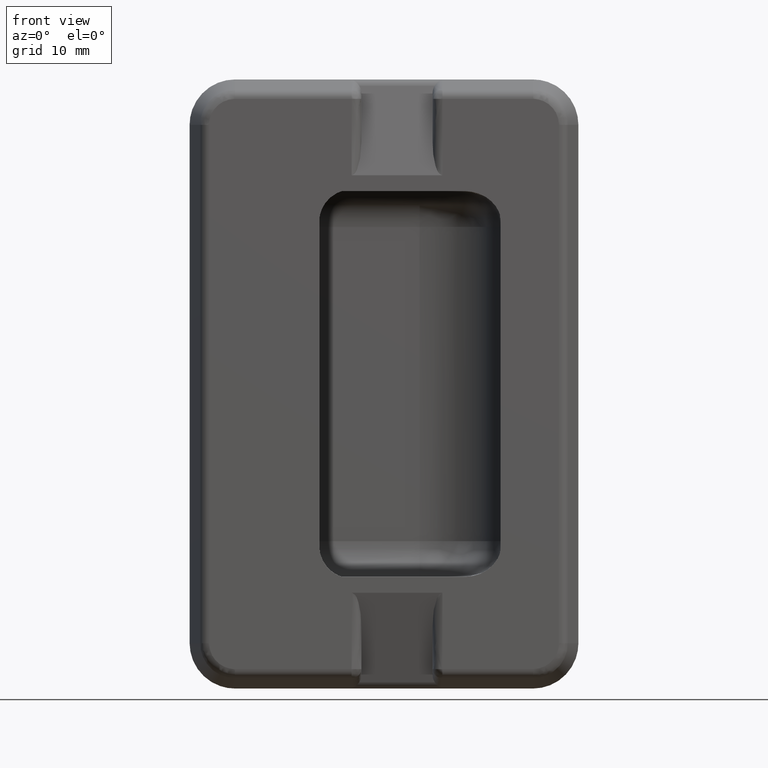
[diagram: clean part render]
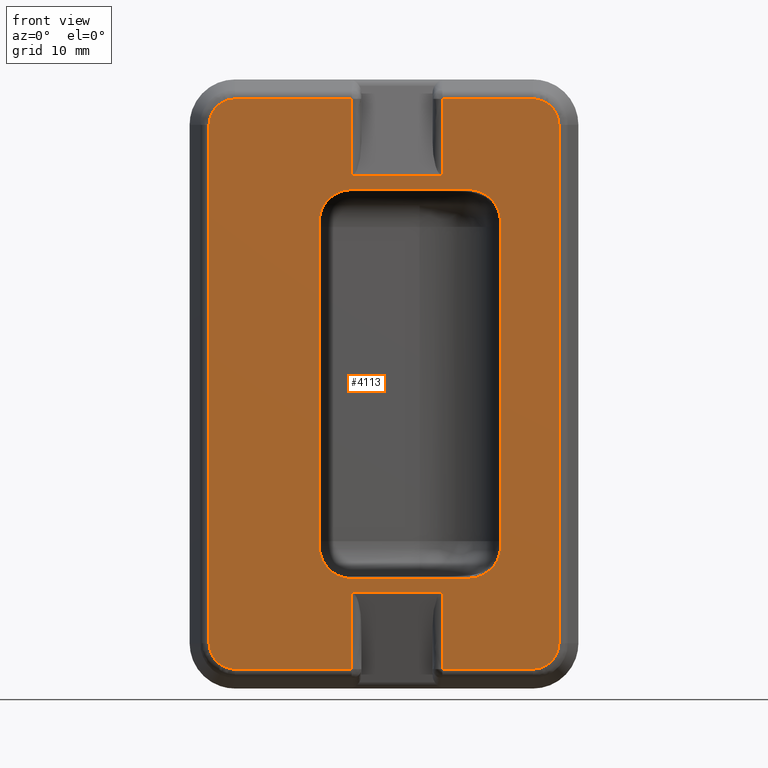
[diagram: same view with one face highlighted and labeled with its STEP entity id]
A machine part, front view. The second image highlights one B-rep face of the part: STEP entity #4113.
In plain terms, the highlighted face is a freeform B-spline surface patch.
Its self-contained STEP definition (entity closure, byte-faithful):
#1587=CARTESIAN_POINT('',(39.0,-5.500000000000000,-43.997117967007149));
#1588=VERTEX_POINT('',#1587);
#1695=CARTESIAN_POINT('',(39.0,-5.500000000000000,-32.215887141629537));
#1696=VERTEX_POINT('',#1695);
#1716=CARTESIAN_POINT('',(39.0,-5.500000000000000,-32.215887141629537));
#1717=CARTESIAN_POINT('',(39.0,-5.500000000000000,-43.997117967007149));
#1718=QUASI_UNIFORM_CURVE('',1,(#1716,#1717),.UNSPECIFIED.,.F.,.U.);
#1719=EDGE_CURVE('',#1696,#1588,#1718,.T.);
#1748=CARTESIAN_POINT('',(25.0,-5.500000000000000,-43.997117967007149));
#1749=VERTEX_POINT('',#1748);
#1794=CARTESIAN_POINT('',(25.0,-5.500000000000000,-32.215887141629537));
#1795=VERTEX_POINT('',#1794);
#1811=CARTESIAN_POINT('',(25.0,-5.500000000000000,-43.997117967007149));
#1812=CARTESIAN_POINT('',(25.0,-5.500000000000000,-32.215887141629537));
#1813=QUASI_UNIFORM_CURVE('',1,(#1811,#1812),.UNSPECIFIED.,.F.,.U.);
#1814=EDGE_CURVE('',#1749,#1795,#1813,.T.);
#1970=CARTESIAN_POINT('',(25.0,-5.500000000000000,43.997117967007199));
#1971=VERTEX_POINT('',#1970);
#2078=CARTESIAN_POINT('',(25.0,-5.500000000000000,32.215887141629537));
#2079=VERTEX_POINT('',#2078);
#2099=CARTESIAN_POINT('',(25.0,-5.500000000000000,32.215887141629537));
#2100=CARTESIAN_POINT('',(25.0,-5.500000000000000,43.997117967007199));
#2101=QUASI_UNIFORM_CURVE('',1,(#2099,#2100),.UNSPECIFIED.,.F.,.U.);
#2102=EDGE_CURVE('',#2079,#1971,#2101,.T.);
#2131=CARTESIAN_POINT('',(39.0,-5.500000000000000,43.997117967007199));
#2132=VERTEX_POINT('',#2131);
#2177=CARTESIAN_POINT('',(39.0,-5.500000000000000,32.215887141629537));
#2178=VERTEX_POINT('',#2177);
#2194=CARTESIAN_POINT('',(39.0,-5.500000000000000,43.997117967007199));
#2195=CARTESIAN_POINT('',(39.0,-5.500000000000000,32.215887141629537));
#2196=QUASI_UNIFORM_CURVE('',1,(#2194,#2195),.UNSPECIFIED.,.F.,.U.);
#2197=EDGE_CURVE('',#2132,#2178,#2196,.T.);
#2222=CARTESIAN_POINT('',(7.0,-5.500000000000000,43.997117967007100));
#2223=VERTEX_POINT('',#2222);
#2224=CARTESIAN_POINT('',(25.0,-5.500000000000000,43.997117967007199));
#2225=CARTESIAN_POINT('',(7.0,-5.500000000000000,43.997117967007100));
#2226=QUASI_UNIFORM_CURVE('',1,(#2224,#2225),.UNSPECIFIED.,.F.,.U.);
#2227=EDGE_CURVE('',#1971,#2223,#2226,.T.);
#2272=CARTESIAN_POINT('',(3.002882032992825,-5.500000000000000,40.0));
#2273=VERTEX_POINT('',#2272);
#2287=CARTESIAN_POINT('',(7.0,-5.500000000000000,43.997117967007163));
#2288=CARTESIAN_POINT('',(3.002882032992841,-5.500000000000000,43.997117967007149));
#2289=CARTESIAN_POINT('',(3.002882032992841,-5.500000000000000,40.0));
#2297=(BOUNDED_CURVE()B_SPLINE_CURVE(2,(#2287,#2288,#2289),.UNSPECIFIED.,.F.,.U.)CURVE()GEOMETRIC_REPRESENTATION_ITEM()QUASI_UNIFORM_CURVE()RATIONAL_B_SPLINE_CURVE((1.0,0.707106781186547,1.0))REPRESENTATION_ITEM(''));
#2298=EDGE_CURVE('',#2223,#2273,#2297,.T.);
#2333=CARTESIAN_POINT('',(3.002882032992840,-5.500000000000000,-40.0));
#2334=VERTEX_POINT('',#2333);
#2348=CARTESIAN_POINT('',(3.002882032992825,-5.500000000000000,40.0));
#2349=CARTESIAN_POINT('',(3.002882032992840,-5.500000000000000,-40.0));
#2350=QUASI_UNIFORM_CURVE('',1,(#2348,#2349),.UNSPECIFIED.,.F.,.U.);
#2351=EDGE_CURVE('',#2273,#2334,#2350,.T.);
#2381=CARTESIAN_POINT('',(7.0,-5.500000000000000,-43.997117967007149));
#2382=VERTEX_POINT('',#2381);
#2396=CARTESIAN_POINT('',(3.002882032992841,-5.500000000000000,-40.0));
#2397=CARTESIAN_POINT('',(3.002882032992841,-5.500000000000000,-43.997117967007149));
#2398=CARTESIAN_POINT('',(7.0,-5.500000000000000,-43.997117967007163));
#2406=(BOUNDED_CURVE()B_SPLINE_CURVE(2,(#2396,#2397,#2398),.UNSPECIFIED.,.F.,.U.)CURVE()GEOMETRIC_REPRESENTATION_ITEM()QUASI_UNIFORM_CURVE()RATIONAL_B_SPLINE_CURVE((1.0,0.707106781186547,1.0))REPRESENTATION_ITEM(''));
#2407=EDGE_CURVE('',#2334,#2382,#2406,.T.);
#2446=CARTESIAN_POINT('',(7.0,-5.500000000000000,-43.997117967007149));
#2447=CARTESIAN_POINT('',(25.0,-5.500000000000000,-43.997117967007149));
#2448=QUASI_UNIFORM_CURVE('',1,(#2446,#2447),.UNSPECIFIED.,.F.,.U.);
#2449=EDGE_CURVE('',#2382,#1749,#2448,.T.);
#2477=CARTESIAN_POINT('',(53.0,-5.500000000000000,43.997117967007100));
#2478=VERTEX_POINT('',#2477);
#2479=CARTESIAN_POINT('',(53.0,-5.500000000000000,43.997117967007100));
#2480=CARTESIAN_POINT('',(39.0,-5.500000000000000,43.997117967007199));
#2481=QUASI_UNIFORM_CURVE('',1,(#2479,#2480),.UNSPECIFIED.,.F.,.U.);
#2482=EDGE_CURVE('',#2478,#2132,#2481,.T.);
#2517=CARTESIAN_POINT('',(56.997117967007199,-5.500000000000000,40.0));
#2518=VERTEX_POINT('',#2517);
#2548=CARTESIAN_POINT('',(56.997117967007163,-5.500000000000000,40.0));
#2549=CARTESIAN_POINT('',(56.997117967007135,-5.500000000000000,43.997117967007149));
#2550=CARTESIAN_POINT('',(53.0,-5.500000000000000,43.997117967007163));
#2558=(BOUNDED_CURVE()B_SPLINE_CURVE(2,(#2548,#2549,#2550),.UNSPECIFIED.,.F.,.U.)CURVE()GEOMETRIC_REPRESENTATION_ITEM()QUASI_UNIFORM_CURVE()RATIONAL_B_SPLINE_CURVE((1.0,0.707106781186547,1.0))REPRESENTATION_ITEM(''));
#2559=EDGE_CURVE('',#2518,#2478,#2558,.T.);
#2578=CARTESIAN_POINT('',(56.997117967007199,-5.500000000000000,-40.0));
#2579=VERTEX_POINT('',#2578);
#2601=CARTESIAN_POINT('',(56.997117967007199,-5.500000000000000,-40.0));
#2602=CARTESIAN_POINT('',(56.997117967007199,-5.500000000000000,40.0));
#2603=QUASI_UNIFORM_CURVE('',1,(#2601,#2602),.UNSPECIFIED.,.F.,.U.);
#2604=EDGE_CURVE('',#2579,#2518,#2603,.T.);
#2626=CARTESIAN_POINT('',(53.0,-5.500000000000000,-43.997117967007149));
#2627=VERTEX_POINT('',#2626);
#2657=CARTESIAN_POINT('',(53.0,-5.500000000000000,-43.997117967007163));
#2658=CARTESIAN_POINT('',(56.997117967007135,-5.500000000000000,-43.997117967007149));
#2659=CARTESIAN_POINT('',(56.997117967007163,-5.500000000000000,-40.0));
#2667=(BOUNDED_CURVE()B_SPLINE_CURVE(2,(#2657,#2658,#2659),.UNSPECIFIED.,.F.,.U.)CURVE()GEOMETRIC_REPRESENTATION_ITEM()QUASI_UNIFORM_CURVE()RATIONAL_B_SPLINE_CURVE((1.0,0.707106781186547,1.0))REPRESENTATION_ITEM(''));
#2668=EDGE_CURVE('',#2627,#2579,#2667,.T.);
#2687=CARTESIAN_POINT('',(39.0,-5.500000000000000,-43.997117967007149));
#2688=CARTESIAN_POINT('',(53.0,-5.500000000000000,-43.997117967007149));
#2689=QUASI_UNIFORM_CURVE('',1,(#2687,#2688),.UNSPECIFIED.,.F.,.U.);
#2690=EDGE_CURVE('',#1588,#2627,#2689,.T.);
#2709=CARTESIAN_POINT('',(43.0,-5.500000000000000,30.0));
#2710=VERTEX_POINT('',#2709);
#2716=CARTESIAN_POINT('',(25.0,-5.500000000000000,30.0));
#2717=VERTEX_POINT('',#2716);
#2718=CARTESIAN_POINT('',(43.0,-5.500000000000000,30.0));
#2719=CARTESIAN_POINT('',(25.0,-5.500000000000000,30.0));
#2720=QUASI_UNIFORM_CURVE('',1,(#2718,#2719),.UNSPECIFIED.,.F.,.U.);
#2721=EDGE_CURVE('',#2710,#2717,#2720,.T.);
#2754=CARTESIAN_POINT('',(48.0,-5.500000000000000,25.0));
#2755=VERTEX_POINT('',#2754);
#2761=CARTESIAN_POINT('',(47.999999999999993,-5.500000000000000,25.0));
#2762=CARTESIAN_POINT('',(47.999999999999993,-5.500000000000001,30.000000000000004));
#2763=CARTESIAN_POINT('',(43.0,-5.500000000000000,30.0));
#2771=(BOUNDED_CURVE()B_SPLINE_CURVE(2,(#2761,#2762,#2763),.UNSPECIFIED.,.F.,.U.)CURVE()GEOMETRIC_REPRESENTATION_ITEM()QUASI_UNIFORM_CURVE()RATIONAL_B_SPLINE_CURVE((1.0,0.707106781186548,1.0))REPRESENTATION_ITEM(''));
#2772=EDGE_CURVE('',#2755,#2710,#2771,.T.);
#2798=CARTESIAN_POINT('',(48.0,-5.500000000000000,-25.0));
#2799=VERTEX_POINT('',#2798);
#2805=CARTESIAN_POINT('',(48.0,-5.500000000000000,-25.0));
#2806=CARTESIAN_POINT('',(48.0,-5.500000000000000,25.0));
#2807=QUASI_UNIFORM_CURVE('',1,(#2805,#2806),.UNSPECIFIED.,.F.,.U.);
#2808=EDGE_CURVE('',#2799,#2755,#2807,.T.);
#2835=CARTESIAN_POINT('',(43.0,-5.500000000000000,-30.0));
#2836=VERTEX_POINT('',#2835);
#2842=CARTESIAN_POINT('',(43.0,-5.500000000000000,-30.0));
#2843=CARTESIAN_POINT('',(47.999999999999993,-5.500000000000001,-30.000000000000004));
#2844=CARTESIAN_POINT('',(47.999999999999993,-5.500000000000000,-25.0));
#2852=(BOUNDED_CURVE()B_SPLINE_CURVE(2,(#2842,#2843,#2844),.UNSPECIFIED.,.F.,.U.)CURVE()GEOMETRIC_REPRESENTATION_ITEM()QUASI_UNIFORM_CURVE()RATIONAL_B_SPLINE_CURVE((1.0,0.707106781186548,1.0))REPRESENTATION_ITEM(''));
#2853=EDGE_CURVE('',#2836,#2799,#2852,.T.);
#2879=CARTESIAN_POINT('',(25.0,-5.500000000000000,-30.0));
#2880=VERTEX_POINT('',#2879);
#2886=CARTESIAN_POINT('',(25.0,-5.500000000000000,-30.0));
#2887=CARTESIAN_POINT('',(43.0,-5.500000000000000,-30.0));
#2888=QUASI_UNIFORM_CURVE('',1,(#2886,#2887),.UNSPECIFIED.,.F.,.U.);
#2889=EDGE_CURVE('',#2880,#2836,#2888,.T.);
#2916=CARTESIAN_POINT('',(20.0,-5.500000000000000,-25.0));
#2917=VERTEX_POINT('',#2916);
#2923=CARTESIAN_POINT('',(20.0,-5.500000000000000,-25.0));
#2924=CARTESIAN_POINT('',(19.999999999999996,-5.500000000000001,-30.000000000000004));
#2925=CARTESIAN_POINT('',(25.0,-5.500000000000000,-30.0));
#2933=(BOUNDED_CURVE()B_SPLINE_CURVE(2,(#2923,#2924,#2925),.UNSPECIFIED.,.F.,.U.)CURVE()GEOMETRIC_REPRESENTATION_ITEM()QUASI_UNIFORM_CURVE()RATIONAL_B_SPLINE_CURVE((1.0,0.707106781186548,1.0))REPRESENTATION_ITEM(''));
#2934=EDGE_CURVE('',#2917,#2880,#2933,.T.);
#2960=CARTESIAN_POINT('',(20.0,-5.500000000000000,25.0));
#2961=VERTEX_POINT('',#2960);
#2967=CARTESIAN_POINT('',(20.0,-5.500000000000000,25.0));
#2968=CARTESIAN_POINT('',(20.0,-5.500000000000000,-25.0));
#2969=QUASI_UNIFORM_CURVE('',1,(#2967,#2968),.UNSPECIFIED.,.F.,.U.);
#2970=EDGE_CURVE('',#2961,#2917,#2969,.T.);
#2996=CARTESIAN_POINT('',(25.0,-5.500000000000000,30.0));
#2997=CARTESIAN_POINT('',(19.999999999999996,-5.500000000000001,30.000000000000004));
#2998=CARTESIAN_POINT('',(20.0,-5.500000000000000,25.0));
#3006=(BOUNDED_CURVE()B_SPLINE_CURVE(2,(#2996,#2997,#2998),.UNSPECIFIED.,.F.,.U.)CURVE()GEOMETRIC_REPRESENTATION_ITEM()QUASI_UNIFORM_CURVE()RATIONAL_B_SPLINE_CURVE((1.0,0.707106781186548,1.0))REPRESENTATION_ITEM(''));
#3007=EDGE_CURVE('',#2717,#2961,#3006,.T.);
#3066=CARTESIAN_POINT('',(25.0,-5.500000000000000,32.215887141629537));
#3067=CARTESIAN_POINT('',(39.0,-5.500000000000000,32.215887141629537));
#3068=QUASI_UNIFORM_CURVE('',1,(#3066,#3067),.UNSPECIFIED.,.F.,.U.);
#3069=EDGE_CURVE('',#2079,#2178,#3068,.T.);
#3116=CARTESIAN_POINT('',(25.0,-5.500000000000000,-32.215887141629537));
#3117=CARTESIAN_POINT('',(39.0,-5.500000000000000,-32.215887141629537));
#3118=QUASI_UNIFORM_CURVE('',1,(#3116,#3117),.UNSPECIFIED.,.F.,.U.);
#3119=EDGE_CURVE('',#1795,#1696,#3118,.T.);
#4080=CARTESIAN_POINT('',(0.305870245645450,-5.500000000000000,48.392427914930217));
#4081=CARTESIAN_POINT('',(59.694127340624142,-5.500000000000000,48.392427914930217));
#4082=CARTESIAN_POINT('',(0.305870245645450,-5.500000000000000,-48.392425554740861));
#4083=CARTESIAN_POINT('',(59.694127340624142,-5.500000000000000,-48.392425554740861));
#4084=B_SPLINE_SURFACE_WITH_KNOTS('',1,1,((#4080,#4082),(#4081,#4083)),.UNSPECIFIED.,.F.,.F.,.U.,(2,2),(2,2),(0.0,59.388257094978677),(0.0,96.784853469671077),.UNSPECIFIED.);
#4085=ORIENTED_EDGE('',*,*,#3069,.F.);
#4086=ORIENTED_EDGE('',*,*,#2102,.T.);
#4087=ORIENTED_EDGE('',*,*,#2227,.T.);
#4088=ORIENTED_EDGE('',*,*,#2298,.T.);
#4089=ORIENTED_EDGE('',*,*,#2351,.T.);
#4090=ORIENTED_EDGE('',*,*,#2407,.T.);
#4091=ORIENTED_EDGE('',*,*,#2449,.T.);
#4092=ORIENTED_EDGE('',*,*,#1814,.T.);
#4093=ORIENTED_EDGE('',*,*,#3119,.T.);
#4094=ORIENTED_EDGE('',*,*,#1719,.T.);
#4095=ORIENTED_EDGE('',*,*,#2690,.T.);
#4096=ORIENTED_EDGE('',*,*,#2668,.T.);
#4097=ORIENTED_EDGE('',*,*,#2604,.T.);
#4098=ORIENTED_EDGE('',*,*,#2559,.T.);
#4099=ORIENTED_EDGE('',*,*,#2482,.T.);
#4100=ORIENTED_EDGE('',*,*,#2197,.T.);
#4101=EDGE_LOOP('',(#4085,#4086,#4087,#4088,#4089,#4090,#4091,#4092,#4093,#4094,#4095,#4096,#4097,#4098,#4099,#4100));
#4102=FACE_OUTER_BOUND('',#4101,.T.);
#4103=ORIENTED_EDGE('',*,*,#3007,.F.);
#4104=ORIENTED_EDGE('',*,*,#2721,.F.);
#4105=ORIENTED_EDGE('',*,*,#2772,.F.);
#4106=ORIENTED_EDGE('',*,*,#2808,.F.);
#4107=ORIENTED_EDGE('',*,*,#2853,.F.);
#4108=ORIENTED_EDGE('',*,*,#2889,.F.);
#4109=ORIENTED_EDGE('',*,*,#2934,.F.);
#4110=ORIENTED_EDGE('',*,*,#2970,.F.);
#4111=EDGE_LOOP('',(#4103,#4104,#4105,#4106,#4107,#4108,#4109,#4110));
#4112=FACE_BOUND('',#4111,.T.);
#4113=ADVANCED_FACE('',(#4102,#4112),#4084,.F.);